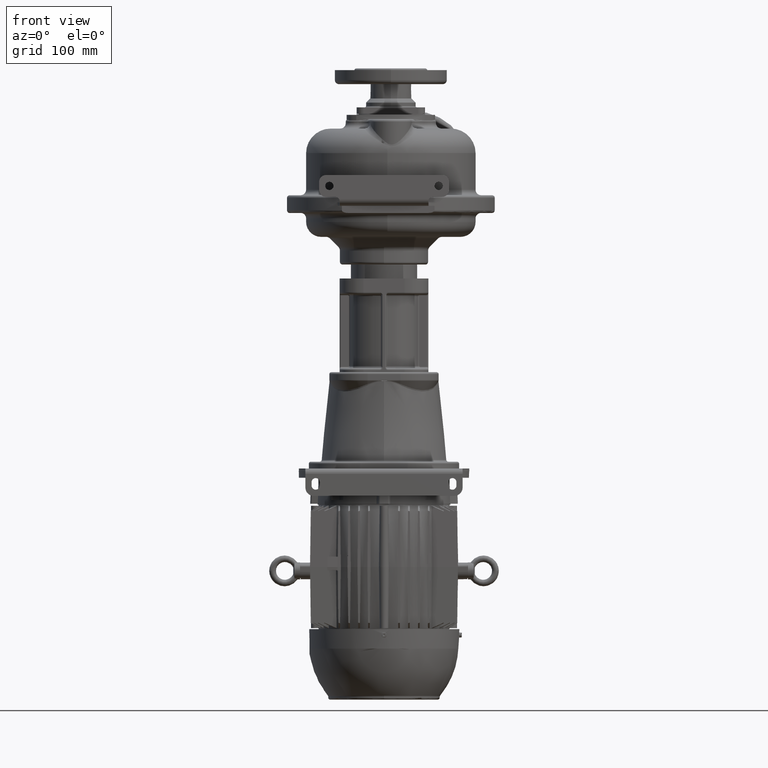
[diagram: clean part render]
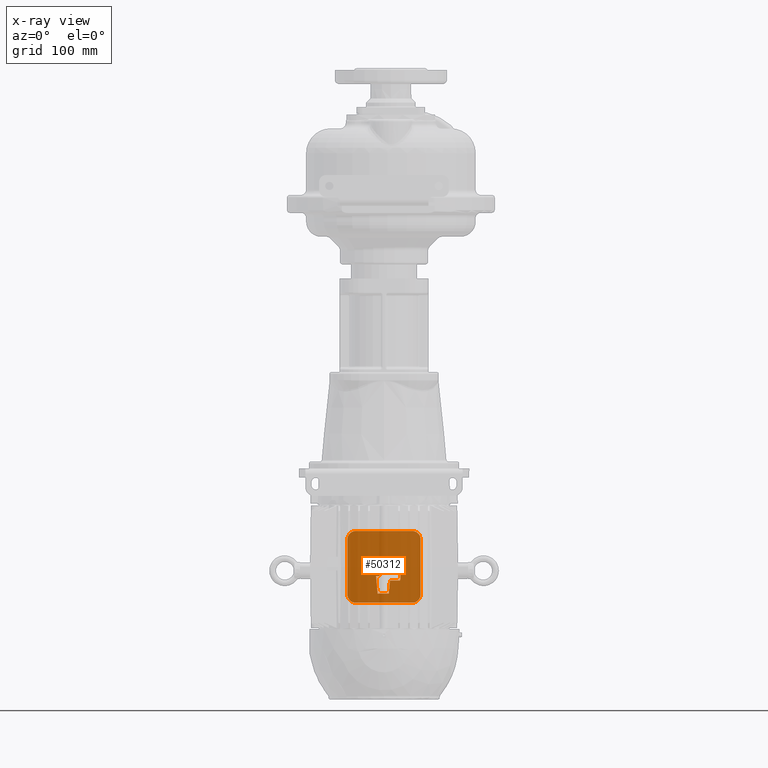
[diagram: x-ray — body ghosted, one internal face saturated and labeled with its STEP entity id]
A machine part, front view, then the same camera in x-ray: the body is ghosted and one INTERNAL B-rep face — a face not visible from any outside direction — is saturated and labeled: STEP entity #50312.
In plain terms, the highlighted planar face has unit normal (0, -1, 0).
Its self-contained STEP definition (entity closure, byte-faithful):
#3581=DIRECTION('',(0.E0,0.E0,-1.E0));
#3582=VECTOR('',#3581,8.1E1);
#3583=CARTESIAN_POINT('',(5.35E1,2.72E2,-5.1705E2));
#3584=LINE('',#3583,#3582);
#3602=DIRECTION('',(-1.E0,0.E0,0.E0));
#3603=VECTOR('',#3602,8.3E1);
#3604=CARTESIAN_POINT('',(4.15E1,2.72E2,-6.1005E2));
#3605=LINE('',#3604,#3603);
#3623=DIRECTION('',(0.E0,0.E0,1.E0));
#3624=VECTOR('',#3623,8.1E1);
#3625=CARTESIAN_POINT('',(-5.35E1,2.72E2,-5.9805E2));
#3626=LINE('',#3625,#3624);
#3644=DIRECTION('',(1.E0,0.E0,0.E0));
#3645=VECTOR('',#3644,8.3E1);
#3646=CARTESIAN_POINT('',(-4.15E1,2.72E2,-5.0505E2));
#3647=LINE('',#3646,#3645);
#3648=CARTESIAN_POINT('',(-4.15E1,2.72E2,-5.1705E2));
#3649=DIRECTION('',(0.E0,-1.E0,0.E0));
#3650=DIRECTION('',(4.796163466381E-14,0.E0,1.E0));
#3651=AXIS2_PLACEMENT_3D('',#3648,#3649,#3650);
#3653=CARTESIAN_POINT('',(4.15E1,2.72E2,-5.1705E2));
#3654=DIRECTION('',(0.E0,-1.E0,0.E0));
#3655=DIRECTION('',(1.E0,0.E0,0.E0));
#3656=AXIS2_PLACEMENT_3D('',#3653,#3654,#3655);
#3658=CARTESIAN_POINT('',(4.15E1,2.72E2,-5.9805E2));
#3659=DIRECTION('',(0.E0,-1.E0,0.E0));
#3660=DIRECTION('',(0.E0,0.E0,-1.E0));
#3661=AXIS2_PLACEMENT_3D('',#3658,#3659,#3660);
#3663=CARTESIAN_POINT('',(-4.15E1,2.72E2,-5.9805E2));
#3664=DIRECTION('',(0.E0,-1.E0,0.E0));
#3665=DIRECTION('',(-1.E0,0.E0,1.042129345781E-13));
#3666=AXIS2_PLACEMENT_3D('',#3663,#3664,#3665);
#3668=DIRECTION('',(1.E0,0.E0,-1.392083727204E-14));
#3669=VECTOR('',#3668,2.449999999999E1);
#3670=CARTESIAN_POINT('',(1.414047977326E-11,2.72E2,-5.5755E2));
#3671=LINE('',#3670,#3669);
#3672=CARTESIAN_POINT('',(0.E0,2.72E2,-5.6355E2));
#3673=DIRECTION('',(0.E0,1.E0,0.E0));
#3674=DIRECTION('',(-9.946737670064E-1,0.E0,1.030732614664E-1));
#3675=AXIS2_PLACEMENT_3D('',#3672,#3673,#3674);
#3677=DIRECTION('',(1.030732614664E-1,0.E0,9.946737670064E-1));
#3678=VECTOR('',#3677,8.179011117119E0);
#3679=CARTESIAN_POINT('',(-6.811079953450E0,2.72E2,-5.710670082295E2));
#3680=LINE('',#3679,#3678);
#3681=DIRECTION('',(1.E0,0.E0,0.E0));
#3682=VECTOR('',#3681,4.764166065420E0);
#3683=CARTESIAN_POINT('',(-1.157524601887E1,2.72E2,-5.710670082295E2));
#3684=LINE('',#3683,#3682);
#3685=DIRECTION('',(-8.715574274765E-2,0.E0,9.961946980917E-1));
#3686=VECTOR('',#3685,2.558033265923E1);
#3687=CARTESIAN_POINT('',(-9.345773126223E0,2.72E2,-5.9655E2));
#3688=LINE('',#3687,#3686);
#3689=DIRECTION('',(1.E0,0.E0,0.E0));
#3690=VECTOR('',#3689,1.634577312622E1);
#3691=CARTESIAN_POINT('',(-9.345773126223E0,2.72E2,-5.9655E2));
#3692=LINE('',#3691,#3690);
#3693=DIRECTION('',(-8.715574274766E-2,0.E0,-9.961946980917E-1));
#3694=VECTOR('',#3693,1.907257691332E1);
#3695=CARTESIAN_POINT('',(8.662284606993E0,2.72E2,-5.7755E2));
#3696=LINE('',#3695,#3694);
#3697=DIRECTION('',(-1.E0,0.E0,0.E0));
#3698=VECTOR('',#3697,1.496449653484E1);
#3699=CARTESIAN_POINT('',(2.362678114183E1,2.72E2,-5.7755E2));
#3700=LINE('',#3699,#3698);
#3701=DIRECTION('',(-4.361938736534E-2,0.E0,-9.990482215819E-1));
#3702=VECTOR('',#3701,2.001905370327E1);
#3703=CARTESIAN_POINT('',(2.45E1,2.72E2,-5.5755E2));
#3704=LINE('',#3703,#3702);
#40538=CARTESIAN_POINT('',(-4.15E1,2.72E2,-5.0505E2));
#40539=CARTESIAN_POINT('',(4.15E1,2.72E2,-5.0505E2));
#40540=VERTEX_POINT('',#40538);
#40541=VERTEX_POINT('',#40539);
#40542=CARTESIAN_POINT('',(-5.35E1,2.72E2,-5.1705E2));
#40543=VERTEX_POINT('',#40542);
#40544=CARTESIAN_POINT('',(-5.35E1,2.72E2,-5.9805E2));
#40545=VERTEX_POINT('',#40544);
#40546=CARTESIAN_POINT('',(-4.15E1,2.72E2,-6.1005E2));
#40547=VERTEX_POINT('',#40546);
#40548=CARTESIAN_POINT('',(4.15E1,2.72E2,-6.1005E2));
#40549=CARTESIAN_POINT('',(5.35E1,2.72E2,-5.9805E2));
#40550=VERTEX_POINT('',#40548);
#40551=VERTEX_POINT('',#40549);
#40552=CARTESIAN_POINT('',(5.35E1,2.72E2,-5.1705E2));
#40553=VERTEX_POINT('',#40552);
#46075=CARTESIAN_POINT('',(1.414047977326E-11,2.72E2,-5.5755E2));
#46076=CARTESIAN_POINT('',(2.45E1,2.72E2,-5.5755E2));
#46077=VERTEX_POINT('',#46075);
#46078=VERTEX_POINT('',#46076);
#46079=CARTESIAN_POINT('',(-6.811079953450E0,2.72E2,-5.710670082295E2));
#46080=CARTESIAN_POINT('',(-5.968042602038E0,2.72E2,-5.629315604312E2));
#46081=VERTEX_POINT('',#46079);
#46082=VERTEX_POINT('',#46080);
#46083=CARTESIAN_POINT('',(2.362678114183E1,2.72E2,-5.7755E2));
#46084=VERTEX_POINT('',#46083);
#46085=CARTESIAN_POINT('',(-9.345773126223E0,2.72E2,-5.9655E2));
#46086=CARTESIAN_POINT('',(7.E0,2.72E2,-5.9655E2));
#46087=VERTEX_POINT('',#46085);
#46088=VERTEX_POINT('',#46086);
#46089=CARTESIAN_POINT('',(8.662284606993E0,2.72E2,-5.7755E2));
#46090=VERTEX_POINT('',#46089);
#46091=CARTESIAN_POINT('',(-1.157524601887E1,2.72E2,-5.710670082295E2));
#46092=VERTEX_POINT('',#46091);
#50277=CARTESIAN_POINT('',(-4.15E1,2.72E2,-5.1705E2));
#50278=DIRECTION('',(0.E0,-1.E0,0.E0));
#50279=DIRECTION('',(1.E0,0.E0,0.E0));
#50280=AXIS2_PLACEMENT_3D('',#50277,#50278,#50279);
#50281=PLANE('',#50280);
#50282=ORIENTED_EDGE('',*,*,#50258,.F.);
#50283=ORIENTED_EDGE('',*,*,#50271,.T.);
#50284=ORIENTED_EDGE('',*,*,#50173,.F.);
#50285=ORIENTED_EDGE('',*,*,#50188,.T.);
#50286=ORIENTED_EDGE('',*,*,#50202,.F.);
#50287=ORIENTED_EDGE('',*,*,#50216,.T.);
#50288=ORIENTED_EDGE('',*,*,#50230,.F.);
#50289=ORIENTED_EDGE('',*,*,#50244,.T.);
#50290=EDGE_LOOP('',(#50282,#50283,#50284,#50285,#50286,#50287,#50288,#50289));
#50291=FACE_OUTER_BOUND('',#50290,.F.);
#50293=ORIENTED_EDGE('',*,*,#50292,.F.);
#50295=ORIENTED_EDGE('',*,*,#50294,.F.);
#50297=ORIENTED_EDGE('',*,*,#50296,.F.);
#50299=ORIENTED_EDGE('',*,*,#50298,.F.);
#50301=ORIENTED_EDGE('',*,*,#50300,.F.);
#50303=ORIENTED_EDGE('',*,*,#50302,.T.);
#50305=ORIENTED_EDGE('',*,*,#50304,.F.);
#50307=ORIENTED_EDGE('',*,*,#50306,.F.);
#50309=ORIENTED_EDGE('',*,*,#50308,.F.);
#50310=EDGE_LOOP('',(#50293,#50295,#50297,#50299,#50301,#50303,#50305,#50307,
#50309));
#50311=FACE_BOUND('',#50310,.F.);
#50312=ADVANCED_FACE('',(#50291,#50311),#50281,.T.);
#3652=CIRCLE('',#3651,1.2E1);
#3657=CIRCLE('',#3656,1.2E1);
#3662=CIRCLE('',#3661,1.2E1);
#3667=CIRCLE('',#3666,1.2E1);
#3676=CIRCLE('',#3675,6.E0);
#50173=EDGE_CURVE('',#40553,#40541,#3657,.T.);
#50188=EDGE_CURVE('',#40553,#40551,#3584,.T.);
#50202=EDGE_CURVE('',#40550,#40551,#3662,.T.);
#50216=EDGE_CURVE('',#40550,#40547,#3605,.T.);
#50230=EDGE_CURVE('',#40545,#40547,#3667,.T.);
#50244=EDGE_CURVE('',#40545,#40543,#3626,.T.);
#50258=EDGE_CURVE('',#40540,#40543,#3652,.T.);
#50271=EDGE_CURVE('',#40540,#40541,#3647,.T.);
#50292=EDGE_CURVE('',#46077,#46078,#3671,.T.);
#50294=EDGE_CURVE('',#46082,#46077,#3676,.T.);
#50296=EDGE_CURVE('',#46081,#46082,#3680,.T.);
#50298=EDGE_CURVE('',#46092,#46081,#3684,.T.);
#50300=EDGE_CURVE('',#46087,#46092,#3688,.T.);
#50302=EDGE_CURVE('',#46087,#46088,#3692,.T.);
#50304=EDGE_CURVE('',#46090,#46088,#3696,.T.);
#50306=EDGE_CURVE('',#46084,#46090,#3700,.T.);
#50308=EDGE_CURVE('',#46078,#46084,#3704,.T.);